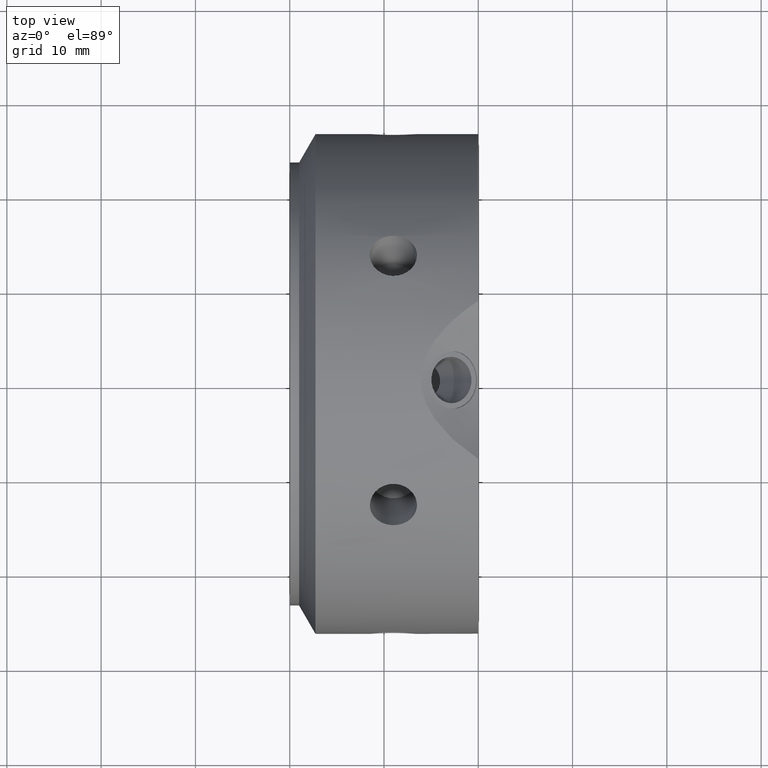
[diagram: clean part render]
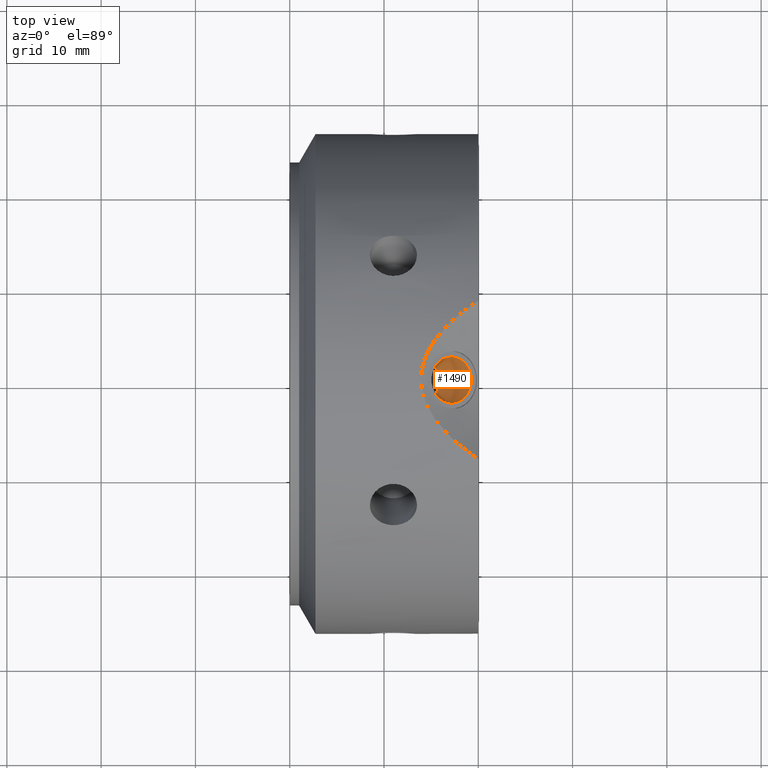
[diagram: same view with one face highlighted and labeled with its STEP entity id]
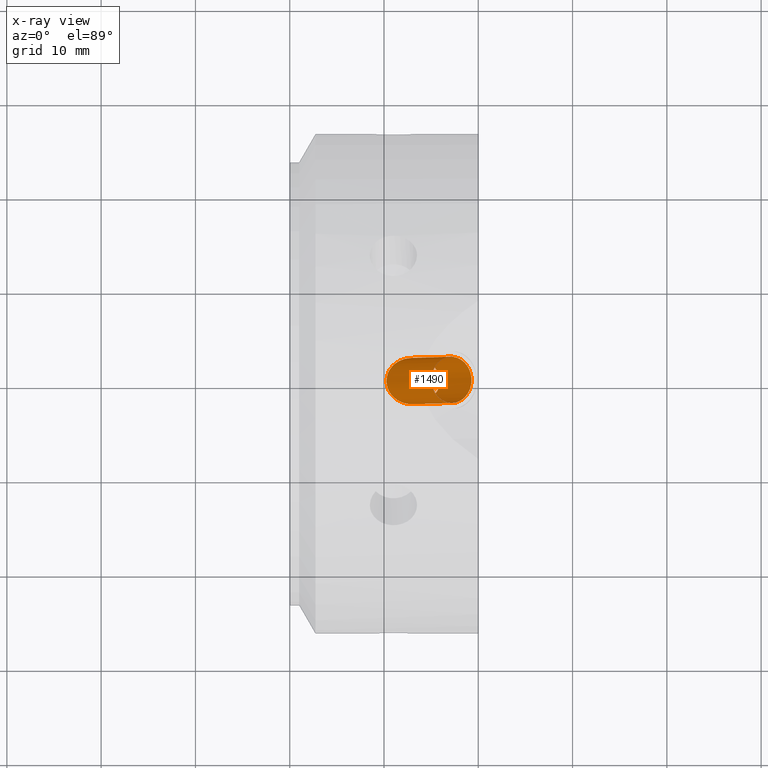
[diagram: x-ray of the same camera — body ghosted, the highlighted face saturated]
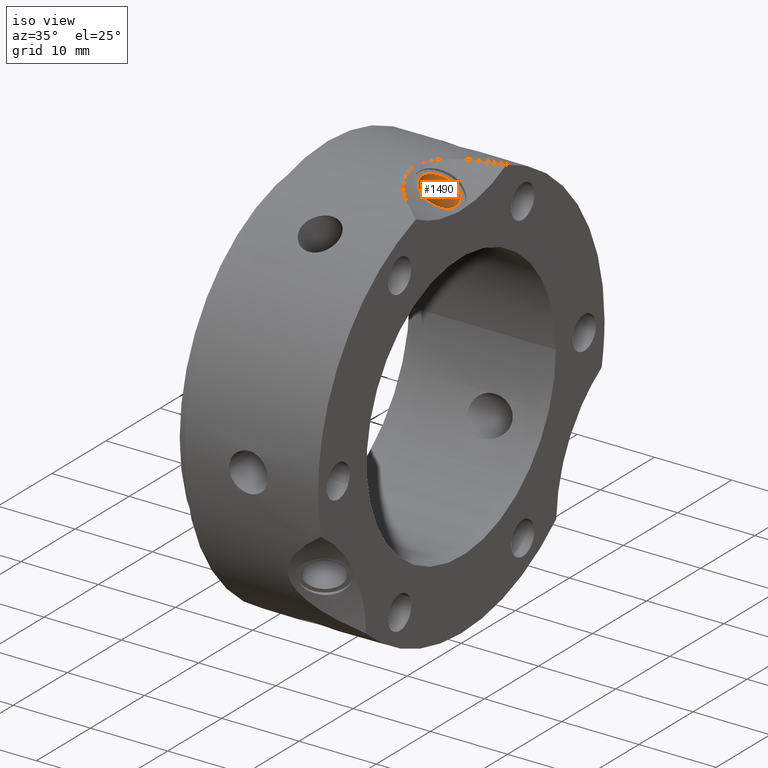
[diagram: same view with one face highlighted and labeled with its STEP entity id]
A machine part, top view. The second image highlights one B-rep face of the part: STEP entity #1490.
The next image is the same camera in x-ray: the body ghosted, the highlighted face saturated — about 0% of this face is hidden behind the body in this view.
A second angle (iso view) of the same face is appended — the face is thin or edge-on in the first view.
In plain terms, the highlighted cylindrical surface (bore or boss wall) has radius 2.4585 mm, axis along (0.5, 0, 0.866).
Its self-contained STEP definition (entity closure, byte-faithful):
#1433=CARTESIAN_POINT('',(12.650000000000006,0.0,16.714290293039657));
#1434=DIRECTION('',(0.500000000000001,0.0,0.866025403784438));
#1435=DIRECTION('',(0.0,1.0,0.0));
#1436=AXIS2_PLACEMENT_3D('',#1433,#1434,#1435);
#1437=CYLINDRICAL_SURFACE('',#1436,2.4585);
#1438=CARTESIAN_POINT('',(13.003429041250484,-2.4585,17.326447349355838));
#1439=VERTEX_POINT('',#1438);
#1440=CARTESIAN_POINT('',(13.003429041250484,-2.4585,17.326447349355838));
#1441=CARTESIAN_POINT('',(13.373336307908442,-2.4585,17.326447349355838));
#1442=CARTESIAN_POINT('',(13.770285189591075,-2.392752087009492,17.336179161376421));
#1443=CARTESIAN_POINT('',(14.511918312238791,-2.123943120208047,17.371161047938074));
#1444=CARTESIAN_POINT('',(14.856675935834765,-1.921027877599233,17.395974267735195));
#1445=CARTESIAN_POINT('',(15.364097585535909,-1.472897197104262,17.439107713135495));
#1446=CARTESIAN_POINT('',(15.576430083381151,-1.21300677140714,17.460341691992248));
#1447=CARTESIAN_POINT('',(15.866034939625724,-0.631003418036881,17.491047785698438));
#1448=CARTESIAN_POINT('',(15.942460984423853,-0.30844244514151,17.5));
#1449=CARTESIAN_POINT('',(15.942460984423853,0.308442445141509,17.5));
#1450=CARTESIAN_POINT('',(15.866034939625724,0.63100341803688,17.491047785698438));
#1451=CARTESIAN_POINT('',(15.576430083381151,1.21300677140714,17.460341691992248));
#1452=CARTESIAN_POINT('',(15.364097585535909,1.472897197104261,17.439107713135495));
#1453=CARTESIAN_POINT('',(14.856675935834765,1.921027877599233,17.395974267735195));
#1454=CARTESIAN_POINT('',(14.511918312238787,2.123943120208049,17.371161047938074));
#1455=CARTESIAN_POINT('',(13.770285189591069,2.392752087009494,17.336179161376421));
#1456=CARTESIAN_POINT('',(13.373336307908438,2.4585,17.326447349355838));
#1457=CARTESIAN_POINT('',(12.653604256878271,2.4585,17.326447349355838));
#1458=CARTESIAN_POINT('',(12.277080953631854,2.399156736804095,17.335252564945314));
#1459=CARTESIAN_POINT('',(11.579822078598458,2.141090853985497,17.36901448990443));
#1460=CARTESIAN_POINT('',(11.259228811305785,1.941935640338608,17.39360093579057));
#1461=CARTESIAN_POINT('',(10.785404978638606,1.490881707967282,17.437659294826688));
#1462=CARTESIAN_POINT('',(10.590121643397875,1.222891308384266,17.459740953431332));
#1463=CARTESIAN_POINT('',(10.329853099904764,0.630369629658845,17.491159233767327));
#1464=CARTESIAN_POINT('',(10.26479843721307,0.30584267197438,17.5));
#1465=CARTESIAN_POINT('',(10.26479843721307,-0.305842671974379,17.5));
#1466=CARTESIAN_POINT('',(10.329853099904764,-0.630369629658845,17.491159233767327));
#1467=CARTESIAN_POINT('',(10.590121643397875,-1.222891308384267,17.459740953431332));
#1468=CARTESIAN_POINT('',(10.785404978638608,-1.490881707967284,17.437659294826688));
#1469=CARTESIAN_POINT('',(11.259228811305789,-1.94193564033861,17.393600935790573));
#1470=CARTESIAN_POINT('',(11.579822078598458,-2.141090853985499,17.36901448990443));
#1471=CARTESIAN_POINT('',(12.277080953631852,-2.399156736804095,17.335252564945314));
#1472=CARTESIAN_POINT('',(12.653604256878275,-2.4585,17.326447349355838));
#1473=CARTESIAN_POINT('',(13.003429041250484,-2.4585,17.326447349355838));
#1474=B_SPLINE_CURVE_WITH_KNOTS('',3,(#1440,#1441,#1442,#1443,#1444,#1445,#1446,#1447,#1448,#1449,#1450,#1451,#1452,#1453,#1454,#1455,#1456,#1457,#1458,#1459,#1460,#1461,#1462,#1463,#1464,#1465,#1466,#1467,#1468,#1469,#1470,#1471,#1472,#1473),.UNSPECIFIED.,.T.,.U.,(4,2,2,2,2,2,2,2,2,2,2,2,2,2,2,2,4),(0.0,0.110972179997387,0.221944359994774,0.314477093537227,0.40700982707968,0.499542560622133,0.592075294164585,0.703047474161973,0.81401965415936,0.918967089471023,1.023914524782686,1.115667326375,1.207420127967314,1.299172929559628,1.390925731151942,1.495873166463605,1.600820601775268),.UNSPECIFIED.);
#1475=EDGE_CURVE('',#1439,#1439,#1474,.T.);
#1476=ORIENTED_EDGE('',*,*,#1475,.F.);
#1477=EDGE_LOOP('',(#1476));
#1478=FACE_OUTER_BOUND('',#1477,.T.);
#1479=CARTESIAN_POINT('',(17.150000000000013,2.4585,24.508518927099601));
#1480=VERTEX_POINT('',#1479);
#1481=CARTESIAN_POINT('',(17.150000000000013,0.0,24.508518927099601));
#1482=DIRECTION('',(-0.500000000000001,0.0,-0.866025403784438));
#1483=DIRECTION('',(0.0,1.0,0.0));
#1484=AXIS2_PLACEMENT_3D('',#1481,#1482,#1483);
#1485=CIRCLE('',#1484,2.4585);
#1486=EDGE_CURVE('',#1480,#1480,#1485,.T.);
#1487=ORIENTED_EDGE('',*,*,#1486,.F.);
#1488=EDGE_LOOP('',(#1487));
#1489=FACE_BOUND('',#1488,.T.);
#1490=ADVANCED_FACE('',(#1478,#1489),#1437,.F.);